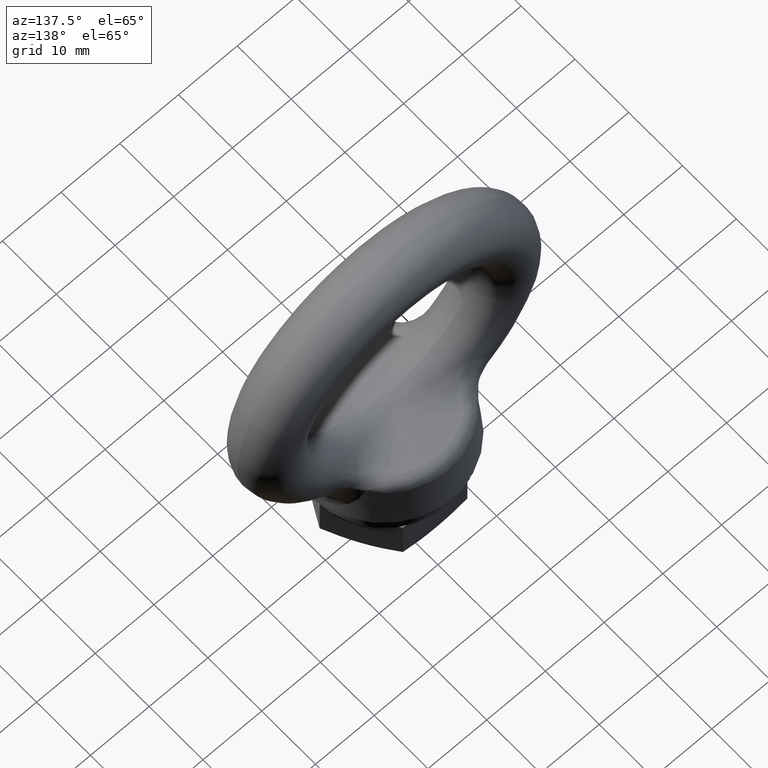
[diagram: clean part render]
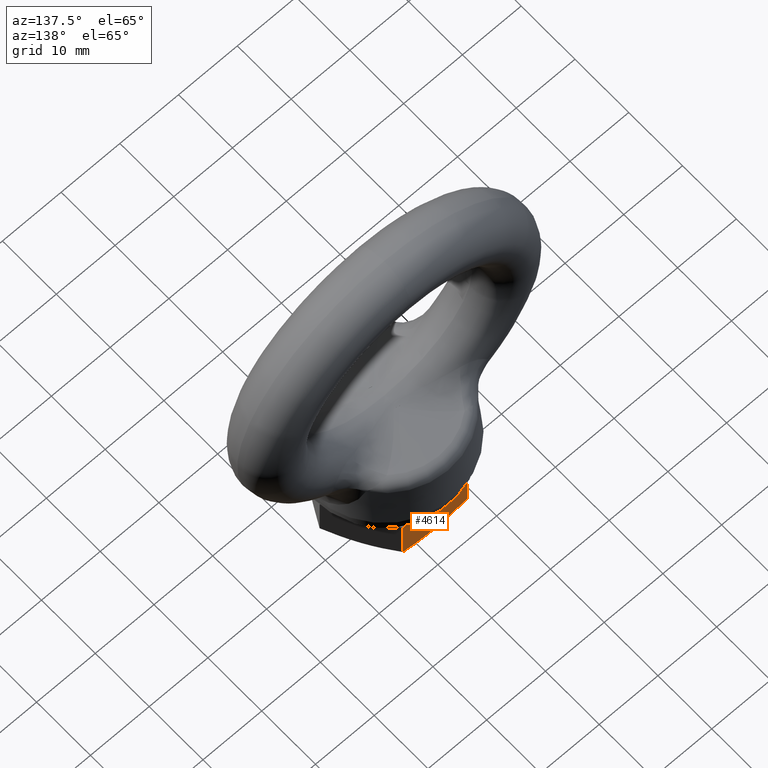
[diagram: same view with one face highlighted and labeled with its STEP entity id]
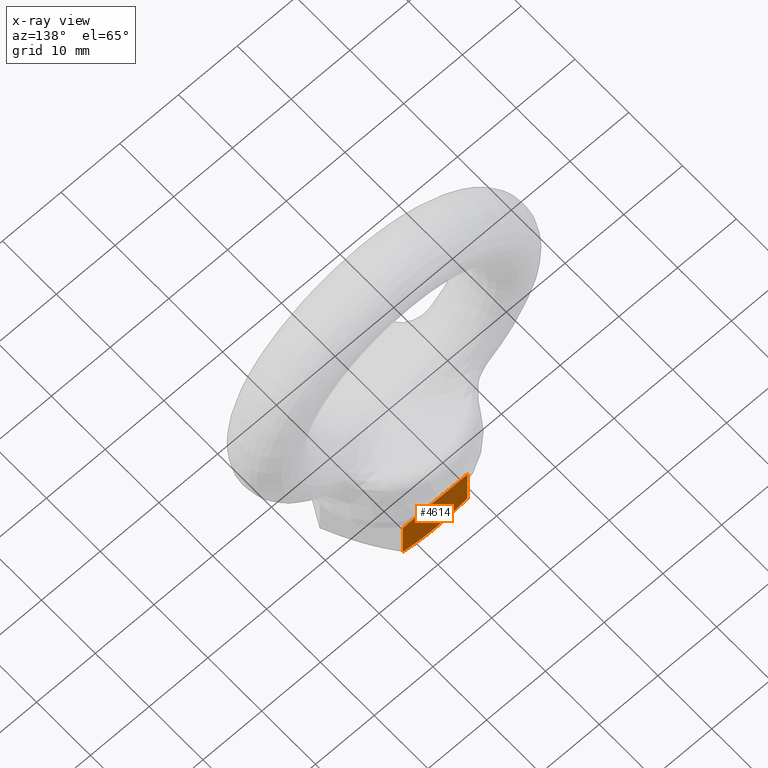
[diagram: x-ray of the same camera — body ghosted, the highlighted face saturated]
A machine part, auxiliary view. The second image highlights one B-rep face of the part: STEP entity #4614.
The next image is the same camera in x-ray: the body ghosted, the highlighted face saturated — about 3% of this face is hidden behind the body in this view.
In plain terms, the highlighted planar face has unit normal (0, 1, 0).
Its self-contained STEP definition (entity closure, byte-faithful):
#3420 = DIRECTION ( 'NONE',  ( 1.000000000000000000, 0.0000000000000000000, 0.0000000000000000000 ) ) ;
#3421 = VECTOR ( 'NONE', #3420, 1000.000000000000000 ) ;
#3422 = CARTESIAN_POINT ( 'NONE',  ( 0.0000000000000000000, 9.500000000000000000, -31.29999900000000300 ) ) ;
#3423 = LINE ( 'NONE', #3422, #3421 ) ;
#3445 = DIRECTION ( 'NONE',  ( 0.0000000000000000000, 0.0000000000000000000, -1.000000000000000000 ) ) ;
#3446 = VECTOR ( 'NONE', #3445, 1000.000000000000000 ) ;
#3447 = CARTESIAN_POINT ( 'NONE',  ( 5.484827999999999400, 9.500000000000000000, 960.7000009999999300 ) ) ;
#3448 = LINE ( 'NONE', #3447, #3446 ) ;
#3449 = DIRECTION ( 'NONE',  ( 0.0000000000000000000, 0.0000000000000000000, 1.000000000000000000 ) ) ;
#3450 = DIRECTION ( 'NONE',  ( 0.0000000000000000000, 1.000000000000000000, 0.0000000000000000000 ) ) ;
#3451 = CARTESIAN_POINT ( 'NONE',  ( -5.484827999999999400, 9.500000000000000000, 960.7000009999999300 ) ) ;
#3452 = AXIS2_PLACEMENT_3D ( 'NONE', #3451, #3450, #3449 ) ;
#3453 = PLANE ( 'NONE',  #3452 ) ;
#3454 = FACE_OUTER_BOUND ( 'NONE', #4615, .T. ) ;
#3587 = CARTESIAN_POINT ( 'NONE',  ( 5.484827999999999400, 9.500000000000000000, -31.29999900000004900 ) ) ;
#3588 = B_SPLINE_CURVE_WITH_KNOTS ( 'NONE', 3,
 ( #3726, #3725, #3724, #3723, #3722, #3721 ),
 .UNSPECIFIED., .F., .F.,
 ( 4, 2, 4 ),
 ( 0.03094261341731328900, 0.03371950614290897300, 0.03649639886850466300 ),
 .UNSPECIFIED. ) ;
#3589 = CARTESIAN_POINT ( 'NONE',  ( 0.0000000000000000000, 9.500000000000000000, -39.29999900000009900 ) ) ;
#3590 = CARTESIAN_POINT ( 'NONE',  ( 0.4642422273689783600, 9.500000000000000000, -39.29999900000009200 ) ) ;
#3591 = CARTESIAN_POINT ( 'NONE',  ( 0.9309557367886552900, 9.500000000000000000, -39.28018090963887900 ) ) ;
#3610 = CARTESIAN_POINT ( 'NONE',  ( 0.0000000000000000000, 9.500000000000000000, -39.29999900000009900 ) ) ;
#3611 = B_SPLINE_CURVE_WITH_KNOTS ( 'NONE', 3,
 ( #3794, #3793, #3792, #3791, #3790, #3591, #3590, #3589 ),
 .UNSPECIFIED., .F., .F.,
 ( 4, 2, 2, 4 ),
 ( 0.02538475887861422000, 0.02816368614796375300, 0.02955314978263852100, 0.03094261341731328900 ),
 .UNSPECIFIED. ) ;
#3656 = CARTESIAN_POINT ( 'NONE',  ( -5.484827999999999400, 9.500000000000000000, -31.29999900000004900 ) ) ;
#3702 = CARTESIAN_POINT ( 'NONE',  ( -5.484827999999999400, 9.500000000000000000, -38.45149309617215000 ) ) ;
#3720 = LINE ( 'NONE', #3729, #3728 ) ;
#3721 = CARTESIAN_POINT ( 'NONE',  ( -5.484827999999999400, 9.500000000000000000, -38.45149309617215000 ) ) ;
#3722 = CARTESIAN_POINT ( 'NONE',  ( -4.591836933403688400, 9.500000000000000000, -38.70927742811878900 ) ) ;
#3723 = CARTESIAN_POINT ( 'NONE',  ( -3.678636697991838100, 9.500000000000000000, -38.92506264670652900 ) ) ;
#3724 = CARTESIAN_POINT ( 'NONE',  ( -1.848673466476764300, 9.500000000000003600, -39.22018446358226400 ) ) ;
#3725 = CARTESIAN_POINT ( 'NONE',  ( -0.9278046808306844600, 9.500000000000001800, -39.29999900000009900 ) ) ;
#3726 = CARTESIAN_POINT ( 'NONE',  ( 0.0000000000000000000, 9.500000000000000000, -39.29999900000009900 ) ) ;
#3727 = DIRECTION ( 'NONE',  ( 0.0000000000000000000, 0.0000000000000000000, -1.000000000000000000 ) ) ;
#3728 = VECTOR ( 'NONE', #3727, 1000.000000000000000 ) ;
#3729 = CARTESIAN_POINT ( 'NONE',  ( -5.484827999999999400, 9.500000000000000000, 960.7000009999999300 ) ) ;
#3768 = CARTESIAN_POINT ( 'NONE',  ( 5.484827999999999400, 9.500000000000000000, -38.45149309617215000 ) ) ;
#3790 = CARTESIAN_POINT ( 'NONE',  ( 1.864605097463271700, 9.500000000000000000, -39.20171378440561900 ) ) ;
#3791 = CARTESIAN_POINT ( 'NONE',  ( 2.326485915615581900, 9.499999999999998200, -39.14361881194127300 ) ) ;
#3792 = CARTESIAN_POINT ( 'NONE',  ( 3.699380491704221000, 9.500000000000000000, -38.92069925434263700 ) ) ;
#3793 = CARTESIAN_POINT ( 'NONE',  ( 4.597734182446064500, 9.500000000000001800, -38.70757503885466400 ) ) ;
#3794 = CARTESIAN_POINT ( 'NONE',  ( 5.484827999999999400, 9.500000000000000000, -38.45149309617215000 ) ) ;
#4614 = ADVANCED_FACE ( 'NONE', ( #3454 ), #3453, .T. ) ;
#4615 = EDGE_LOOP ( 'NONE', ( #4616, #4722, #4725, #4727, #4728 ) ) ;
#4616 = ORIENTED_EDGE ( 'NONE', *, *, #4617, .T. ) ;
#4617 = EDGE_CURVE ( 'NONE', #4618, #4721, #3448, .T. ) ;
#4618 = VERTEX_POINT ( 'NONE', #3587 ) ;
#4637 = EDGE_CURVE ( 'NONE', #4746, #4618, #3423, .T. ) ;
#4721 = VERTEX_POINT ( 'NONE', #3768 ) ;
#4722 = ORIENTED_EDGE ( 'NONE', *, *, #4723, .T. ) ;
#4723 = EDGE_CURVE ( 'NONE', #4721, #4724, #3611, .T. ) ;
#4724 = VERTEX_POINT ( 'NONE', #3610 ) ;
#4725 = ORIENTED_EDGE ( 'NONE', *, *, #4726, .T. ) ;
#4726 = EDGE_CURVE ( 'NONE', #4724, #4730, #3588, .T. ) ;
#4727 = ORIENTED_EDGE ( 'NONE', *, *, #4729, .F. ) ;
#4728 = ORIENTED_EDGE ( 'NONE', *, *, #4637, .T. ) ;
#4729 = EDGE_CURVE ( 'NONE', #4746, #4730, #3720, .T. ) ;
#4730 = VERTEX_POINT ( 'NONE', #3702 ) ;
#4746 = VERTEX_POINT ( 'NONE', #3656 ) ;